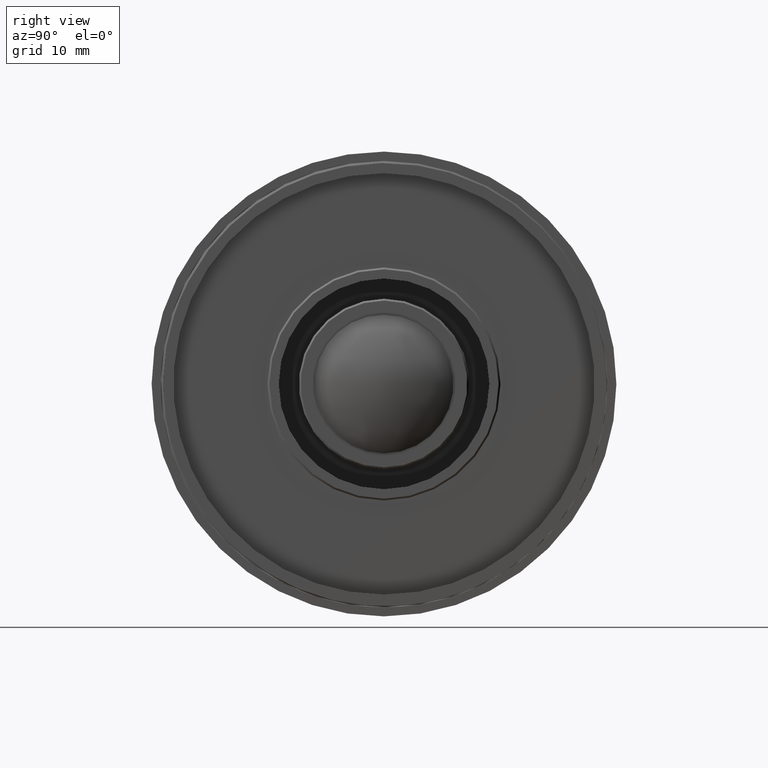
[diagram: clean part render]
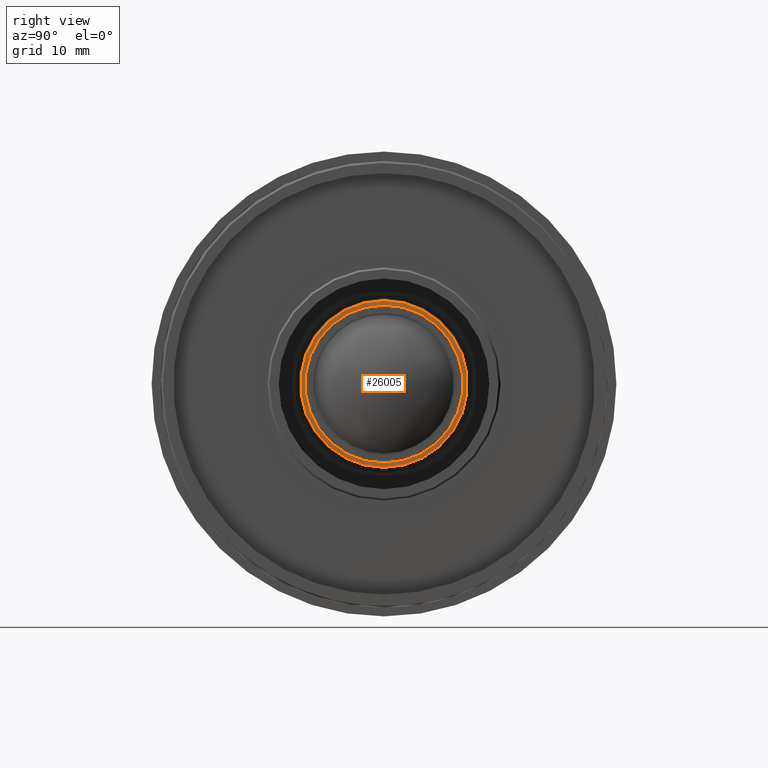
[diagram: same view with one face highlighted and labeled with its STEP entity id]
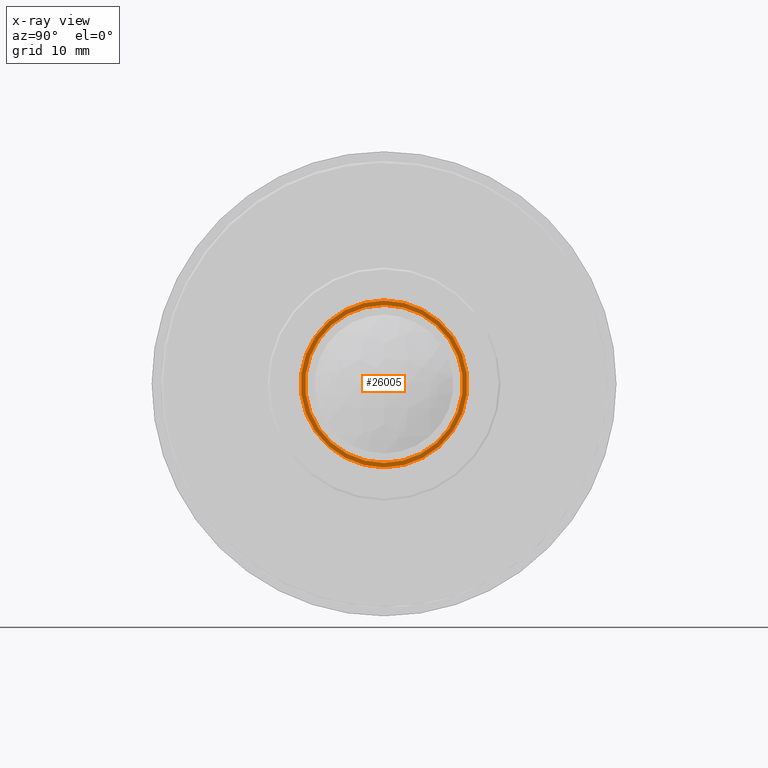
[diagram: x-ray of the same camera — body ghosted, the highlighted face saturated]
A machine part, right view. The second image highlights one B-rep face of the part: STEP entity #26005.
The next image is the same camera in x-ray: the body ghosted, the highlighted face saturated — about 0% of this face is hidden behind the body in this view.
In plain terms, the highlighted planar face has unit normal (1, 0, 0).
Its self-contained STEP definition (entity closure, byte-faithful):
#24 = ORIENTED_EDGE ( 'NONE', *, *, #30403, .F. ) ;
#148 = CARTESIAN_POINT ( 'NONE',  ( 42.97999999999999687, 0.0000000000000000000, -12.75000000000000178 ) ) ;
#1281 = EDGE_CURVE ( 'NONE', #28116, #6949, #56011, .T. ) ;
#6678 = DIRECTION ( 'NONE',  ( -1.000000000000000000, 0.0000000000000000000, 0.0000000000000000000 ) ) ;
#6949 = VERTEX_POINT ( 'NONE', #148 ) ;
#8475 = EDGE_LOOP ( 'NONE', ( #24, #62512 ) ) ;
#9757 = DIRECTION ( 'NONE',  ( 0.0000000000000000000, 0.0000000000000000000, 1.000000000000000000 ) ) ;
#11051 = DIRECTION ( 'NONE',  ( 0.0000000000000000000, 0.0000000000000000000, -1.000000000000000000 ) ) ;
#14664 = AXIS2_PLACEMENT_3D ( 'NONE', #30478, #51270, #66917 ) ;
#14855 = DIRECTION ( 'NONE',  ( -1.000000000000000000, 0.0000000000000000000, 0.0000000000000000000 ) ) ;
#16202 = CARTESIAN_POINT ( 'NONE',  ( 42.98000000000001819, 0.0000000000000000000, 3.816391647148975608E-14 ) ) ;
#16501 = DIRECTION ( 'NONE',  ( 1.000000000000000000, 0.0000000000000000000, 0.0000000000000000000 ) ) ;
#20713 = ORIENTED_EDGE ( 'NONE', *, *, #35556, .T. ) ;
#21475 = AXIS2_PLACEMENT_3D ( 'NONE', #36272, #16501, #11051 ) ;
#22995 = CARTESIAN_POINT ( 'NONE',  ( 42.98000000000001819, 0.0000000000000000000, 3.816391647148975608E-14 ) ) ;
#23735 = CIRCLE ( 'NONE', #46615, 13.45000000000002949 ) ;
#26005 = ADVANCED_FACE ( 'NONE', ( #51935, #32154 ), #26057, .T. ) ;
#26057 = PLANE ( 'NONE',  #21475 ) ;
#27736 = AXIS2_PLACEMENT_3D ( 'NONE', #22995, #6678, #58447 ) ;
#28116 = VERTEX_POINT ( 'NONE', #59115 ) ;
#30403 = EDGE_CURVE ( 'NONE', #54792, #63846, #23735, .T. ) ;
#30478 = CARTESIAN_POINT ( 'NONE',  ( 42.97999999999999687, 0.0000000000000000000, 0.0000000000000000000 ) ) ;
#32154 = FACE_OUTER_BOUND ( 'NONE', #8475, .T. ) ;
#35080 = CARTESIAN_POINT ( 'NONE',  ( 42.98000000000001819, 1.665519646840399435E-15, -13.44999999999999218 ) ) ;
#35556 = EDGE_CURVE ( 'NONE', #6949, #28116, #36266, .T. ) ;
#36266 = CIRCLE ( 'NONE', #53655, 12.75000000000000178 ) ;
#36272 = CARTESIAN_POINT ( 'NONE',  ( 42.97999999999999687, 0.0000000000000000000, 61.35000000000000142 ) ) ;
#39429 = EDGE_CURVE ( 'NONE', #63846, #54792, #39682, .T. ) ;
#39682 = CIRCLE ( 'NONE', #27736, 13.45000000000002949 ) ;
#45537 = DIRECTION ( 'NONE',  ( 0.0000000000000000000, 0.0000000000000000000, -1.000000000000000000 ) ) ;
#46615 = AXIS2_PLACEMENT_3D ( 'NONE', #16202, #14855, #9757 ) ;
#51270 = DIRECTION ( 'NONE',  ( -1.000000000000000000, -0.0000000000000000000, -0.0000000000000000000 ) ) ;
#51935 = FACE_BOUND ( 'NONE', #66870, .T. ) ;
#52508 = ORIENTED_EDGE ( 'NONE', *, *, #1281, .T. ) ;
#53655 = AXIS2_PLACEMENT_3D ( 'NONE', #60521, #55768, #45537 ) ;
#54792 = VERTEX_POINT ( 'NONE', #57158 ) ;
#55768 = DIRECTION ( 'NONE',  ( -1.000000000000000000, -0.0000000000000000000, -0.0000000000000000000 ) ) ;
#56011 = CIRCLE ( 'NONE', #14664, 12.75000000000000178 ) ;
#57158 = CARTESIAN_POINT ( 'NONE',  ( 42.98000000000001819, 0.0000000000000000000, 13.45000000000006857 ) ) ;
#58447 = DIRECTION ( 'NONE',  ( 0.0000000000000000000, 0.0000000000000000000, 1.000000000000000000 ) ) ;
#59115 = CARTESIAN_POINT ( 'NONE',  ( 42.97999999999999687, 1.561424668912875506E-15, 12.75000000000000178 ) ) ;
#60521 = CARTESIAN_POINT ( 'NONE',  ( 42.97999999999999687, 0.0000000000000000000, 0.0000000000000000000 ) ) ;
#62512 = ORIENTED_EDGE ( 'NONE', *, *, #39429, .F. ) ;
#63846 = VERTEX_POINT ( 'NONE', #35080 ) ;
#66870 = EDGE_LOOP ( 'NONE', ( #20713, #52508 ) ) ;
#66917 = DIRECTION ( 'NONE',  ( 0.0000000000000000000, 0.0000000000000000000, -1.000000000000000000 ) ) ;